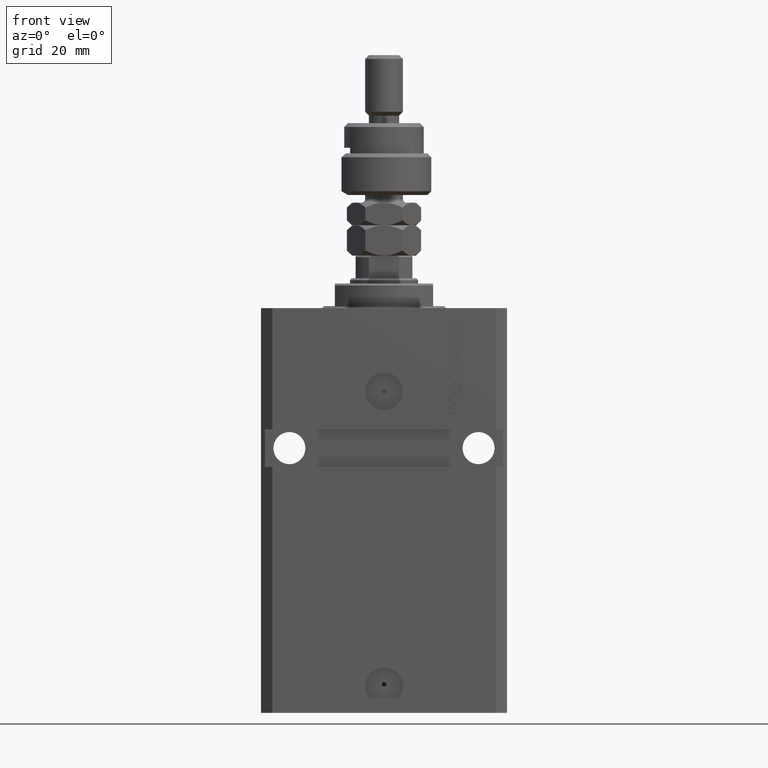
[diagram: clean part render]
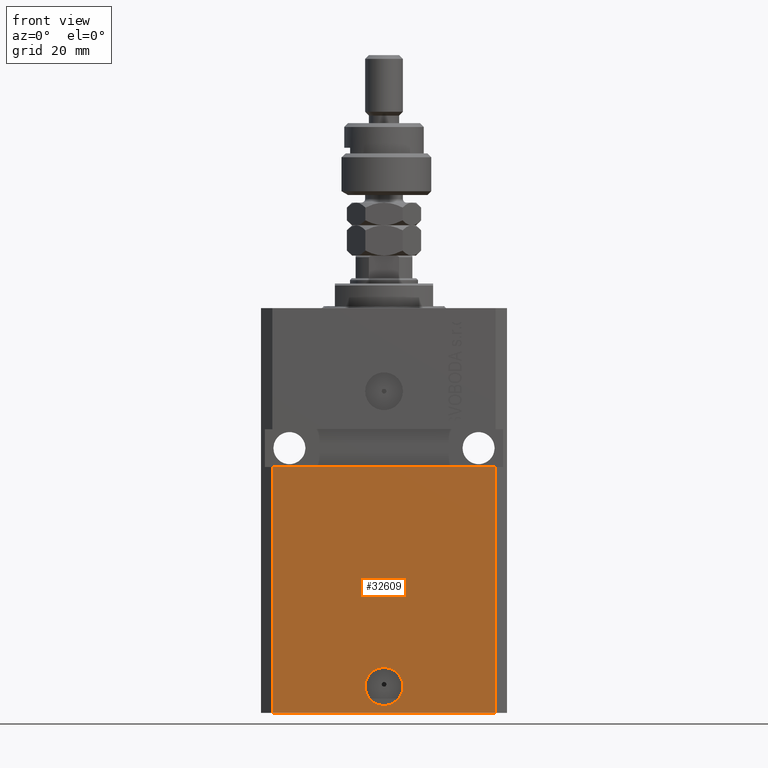
[diagram: same view with one face highlighted and labeled with its STEP entity id]
A machine part, front view. The second image highlights one B-rep face of the part: STEP entity #32609.
In plain terms, the highlighted planar face has unit normal (0, -1, 0).
Its self-contained STEP definition (entity closure, byte-faithful):
#68 = EDGE_LOOP ( 'NONE', ( #21642, #14324 ) ) ;
#173 = EDGE_CURVE ( 'NONE', #27741, #451, #22240, .T. ) ;
#420 = LINE ( 'NONE', #15827, #29514 ) ;
#451 = VERTEX_POINT ( 'NONE', #33084 ) ;
#2545 = CARTESIAN_POINT ( 'NONE',  ( -29.49999999999650413, -22.49999999999949907, -107.0000000000000000 ) ) ;
#2723 = VERTEX_POINT ( 'NONE', #6348 ) ;
#5671 = LINE ( 'NONE', #14266, #29371 ) ;
#5852 = AXIS2_PLACEMENT_3D ( 'NONE', #48906, #18309, #29943 ) ;
#6348 = CARTESIAN_POINT ( 'NONE',  ( 5.000000000000008882, -22.49999999999949551, -99.99999999999998579 ) ) ;
#6963 = DIRECTION ( 'NONE',  ( 1.000000000000000000, 1.067522139062765303E-16, 1.067522139062765303E-16 ) ) ;
#8981 = EDGE_CURVE ( 'NONE', #47058, #2723, #19563, .T. ) ;
#10691 = CARTESIAN_POINT ( 'NONE',  ( -29.49999999999650413, -22.49999999999949907, -107.0000000000000000 ) ) ;
#12023 = VECTOR ( 'NONE', #22490, 1000.000000000000000 ) ;
#14147 = CIRCLE ( 'NONE', #14939, 5.000000000000006217 ) ;
#14266 = CARTESIAN_POINT ( 'NONE',  ( -29.49999999999650413, -22.49999999999949907, -107.0000000000000000 ) ) ;
#14324 = ORIENTED_EDGE ( 'NONE', *, *, #8981, .F. ) ;
#14494 = DIRECTION ( 'NONE',  ( 1.000000000000000000, 1.176083712526788232E-16, 0.000000000000000000 ) ) ;
#14683 = EDGE_CURVE ( 'NONE', #24893, #40264, #18337, .T. ) ;
#14939 = AXIS2_PLACEMENT_3D ( 'NONE', #41969, #27296, #34389 ) ;
#15827 = CARTESIAN_POINT ( 'NONE',  ( 29.49999999999650413, -22.49999999999949196, -107.0000000000000000 ) ) ;
#18309 = DIRECTION ( 'NONE',  ( 1.176083712526788232E-16, -1.000000000000000000, 0.000000000000000000 ) ) ;
#18337 = LINE ( 'NONE', #48935, #18805 ) ;
#18805 = VECTOR ( 'NONE', #6963, 1000.000000000000000 ) ;
#19563 = CIRCLE ( 'NONE', #5852, 5.000000000000006217 ) ;
#20026 = AXIS2_PLACEMENT_3D ( 'NONE', #34206, #38237, #14494 ) ;
#21642 = ORIENTED_EDGE ( 'NONE', *, *, #46008, .F. ) ;
#22082 = CARTESIAN_POINT ( 'NONE',  ( 29.49999999999650058, -22.49999999999949196, -41.99999999999998579 ) ) ;
#22240 = LINE ( 'NONE', #2545, #12023 ) ;
#22490 = DIRECTION ( 'NONE',  ( 1.000000000000000000, 1.176083712526788232E-16, 0.000000000000000000 ) ) ;
#24893 = VERTEX_POINT ( 'NONE', #48953 ) ;
#24958 = EDGE_CURVE ( 'NONE', #451, #40264, #420, .T. ) ;
#26342 = ORIENTED_EDGE ( 'NONE', *, *, #39341, .F. ) ;
#27296 = DIRECTION ( 'NONE',  ( 1.176083712526788232E-16, -1.000000000000000000, 0.000000000000000000 ) ) ;
#27741 = VERTEX_POINT ( 'NONE', #10691 ) ;
#28521 = EDGE_LOOP ( 'NONE', ( #37467, #26342, #30953, #40778 ) ) ;
#29371 = VECTOR ( 'NONE', #29679, 1000.000000000000000 ) ;
#29514 = VECTOR ( 'NONE', #31247, 1000.000000000000000 ) ;
#29679 = DIRECTION ( 'NONE',  ( 0.000000000000000000, 0.000000000000000000, 1.000000000000000000 ) ) ;
#29943 = DIRECTION ( 'NONE',  ( 1.000000000000000000, 0.000000000000000000, 0.000000000000000000 ) ) ;
#30953 = ORIENTED_EDGE ( 'NONE', *, *, #173, .T. ) ;
#31247 = DIRECTION ( 'NONE',  ( 0.000000000000000000, 0.000000000000000000, 1.000000000000000000 ) ) ;
#32609 = ADVANCED_FACE ( 'NONE', ( #41786, #41530 ), #45075, .T. ) ;
#33084 = CARTESIAN_POINT ( 'NONE',  ( 29.49999999999650413, -22.49999999999949196, -107.0000000000000000 ) ) ;
#34206 = CARTESIAN_POINT ( 'NONE',  ( -29.49999999999650413, -22.49999999999949907, -107.0000000000000000 ) ) ;
#34389 = DIRECTION ( 'NONE',  ( 1.000000000000000000, 0.000000000000000000, 0.000000000000000000 ) ) ;
#37467 = ORIENTED_EDGE ( 'NONE', *, *, #14683, .F. ) ;
#38237 = DIRECTION ( 'NONE',  ( 1.176083712526788232E-16, -1.000000000000000000, 0.000000000000000000 ) ) ;
#39341 = EDGE_CURVE ( 'NONE', #27741, #24893, #5671, .T. ) ;
#40264 = VERTEX_POINT ( 'NONE', #22082 ) ;
#40778 = ORIENTED_EDGE ( 'NONE', *, *, #24958, .T. ) ;
#41530 = FACE_OUTER_BOUND ( 'NONE', #28521, .T. ) ;
#41786 = FACE_BOUND ( 'NONE', #68, .T. ) ;
#41969 = CARTESIAN_POINT ( 'NONE',  ( 2.646188353185214061E-15, -22.49999999999949551, -99.99999999999998579 ) ) ;
#42610 = CARTESIAN_POINT ( 'NONE',  ( -5.000000000000003553, -22.49999999999949551, -99.99999999999998579 ) ) ;
#45075 = PLANE ( 'NONE',  #20026 ) ;
#46008 = EDGE_CURVE ( 'NONE', #2723, #47058, #14147, .T. ) ;
#47058 = VERTEX_POINT ( 'NONE', #42610 ) ;
#48906 = CARTESIAN_POINT ( 'NONE',  ( 2.646188353185214061E-15, -22.49999999999949551, -99.99999999999998579 ) ) ;
#48935 = CARTESIAN_POINT ( 'NONE',  ( -32.49999999999650413, -22.49999999999949907, -41.99999999999999289 ) ) ;
#48953 = CARTESIAN_POINT ( 'NONE',  ( -29.49999999999650413, -22.49999999999949907, -41.99999999999999289 ) ) ;